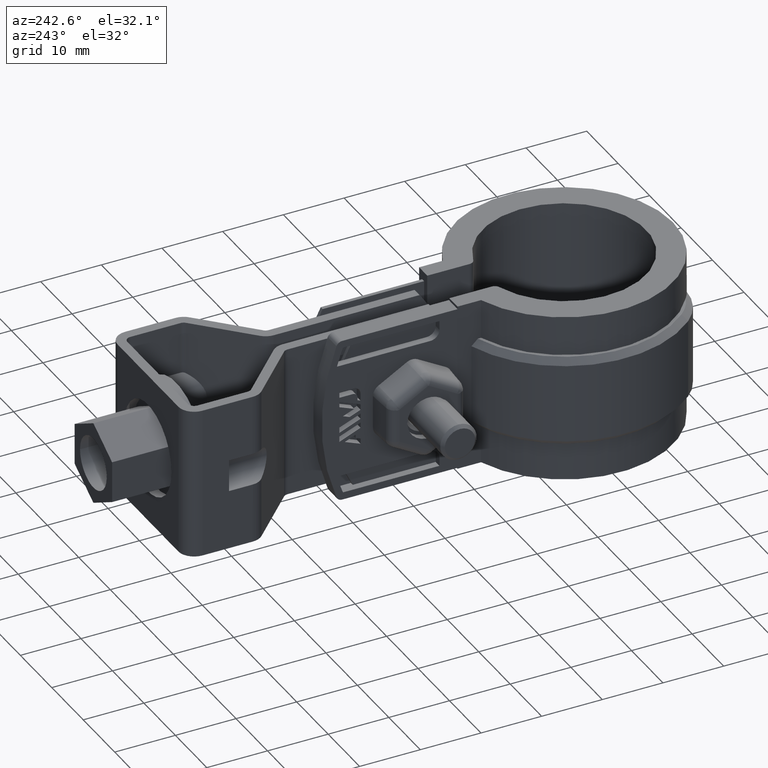
[diagram: clean part render]
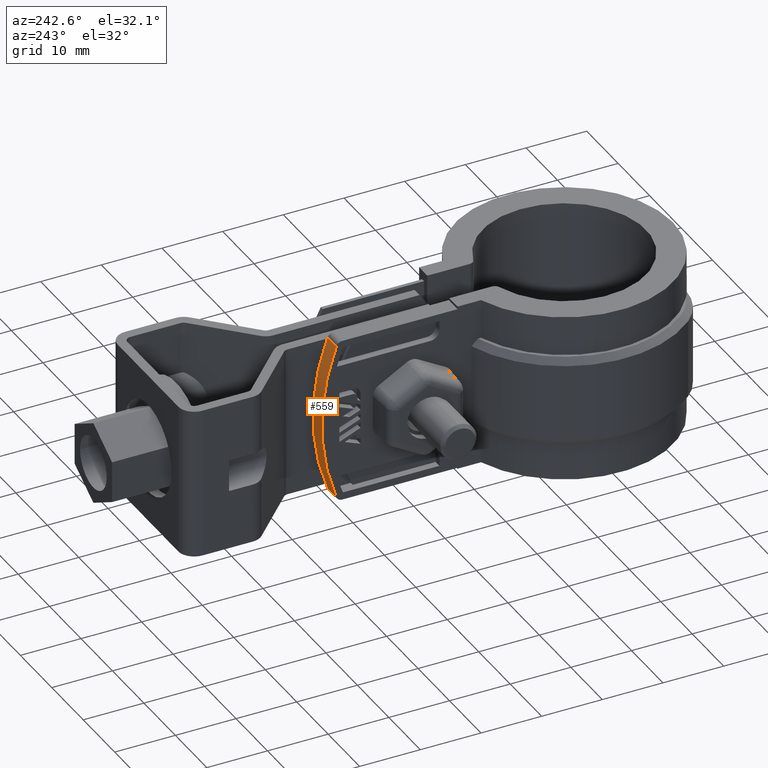
[diagram: same view with one face highlighted and labeled with its STEP entity id]
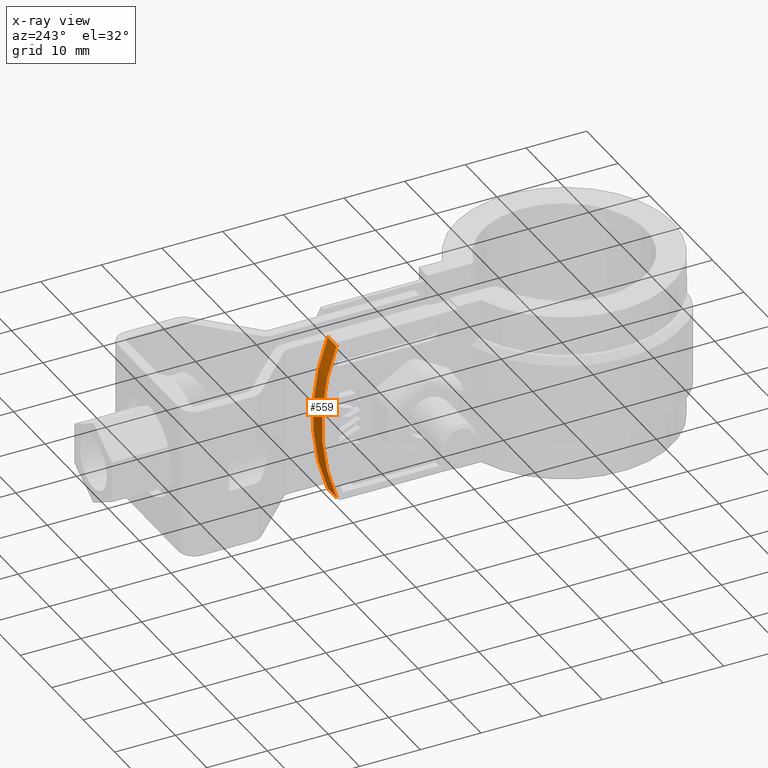
[diagram: x-ray of the same camera — body ghosted, the highlighted face saturated]
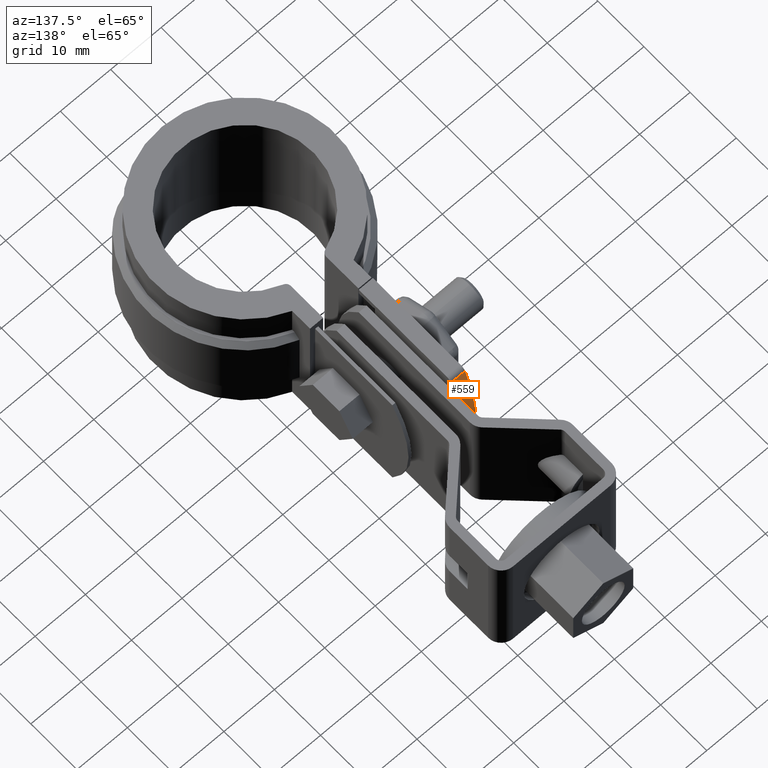
[diagram: same view with one face highlighted and labeled with its STEP entity id]
A machine part, auxiliary view. The second image highlights one B-rep face of the part: STEP entity #559.
The next image is the same camera in x-ray: the body ghosted, the highlighted face saturated — about 0% of this face is hidden behind the body in this view.
A second angle (auxiliary view) of the same face is appended — the face is thin or edge-on in the first view.
In plain terms, the highlighted cylindrical surface (partial cylindrical patch) has radius 36.4 mm, axis along (-1, -0, 0).
Its self-contained STEP definition (entity closure, byte-faithful):
#559 = ADVANCED_FACE( '', ( #1112 ), #1113, .T. );
#1112 = FACE_OUTER_BOUND( '', #2237, .T. );
#1113 = CYLINDRICAL_SURFACE( '', #2238, 36.4000000000000 );
#2237 = EDGE_LOOP( '', ( #4951, #4952, #4953, #4954 ) );
#2238 = AXIS2_PLACEMENT_3D( '', #4955, #4956, #4957 );
#4951 = ORIENTED_EDGE( '', *, *, #6616, .T. );
#4952 = ORIENTED_EDGE( '', *, *, #6617, .T. );
#4953 = ORIENTED_EDGE( '', *, *, #6618, .F. );
#4954 = ORIENTED_EDGE( '', *, *, #6619, .T. );
#4955 = CARTESIAN_POINT( '', ( -3.50000000000003, 6.82194656581947, -12.5000000000001 ) );
#4956 = DIRECTION( '', ( -1.00000000000000, -1.77553823037275E-016, 1.31611162141133E-020 ) );
#4957 = DIRECTION( '', ( -1.64492975916827E-016, 0.926467966726517, 0.376373626373626 ) );
#6616 = EDGE_CURVE( '', #7986, #7987, #7988, .T. );
#6617 = EDGE_CURVE( '', #7987, #7989, #7990, .T. );
#6618 = EDGE_CURVE( '', #7991, #7989, #7992, .T. );
#6619 = EDGE_CURVE( '', #7991, #7986, #7993, .T. );
#7986 = VERTEX_POINT( '', #11337 );
#7987 = VERTEX_POINT( '', #11338 );
#7988 = CIRCLE( '', #11339, 36.4000000000000 );
#7989 = VERTEX_POINT( '', #11340 );
#7990 = LINE( '', #11341, #11342 );
#7991 = VERTEX_POINT( '', #11343 );
#7992 = CIRCLE( '', #11344, 36.4000000000000 );
#7993 = LINE( '', #11345, #11346 );
#11337 = CARTESIAN_POINT( '', ( -3.50000000000003, 40.7988337686200, 0.558757062146803 ) );
#11338 = CARTESIAN_POINT( '', ( -3.50000000000003, 40.7988337686200, -25.5587570621470 ) );
#11339 = AXIS2_PLACEMENT_3D( '', #12835, #12836, #12837 );
#11340 = CARTESIAN_POINT( '', ( -6.30000000000003, 40.7988337686200, -25.5587570621470 ) );
#11341 = CARTESIAN_POINT( '', ( -3.50000000000004, 40.7988337686200, -25.5587570621470 ) );
#11342 = VECTOR( '', #12838, 1000.00000000000 );
#11343 = CARTESIAN_POINT( '', ( -6.30000000000003, 40.7988337686200, 0.558757062146803 ) );
#11344 = AXIS2_PLACEMENT_3D( '', #12839, #12840, #12841 );
#11345 = CARTESIAN_POINT( '', ( -3.50000000000004, 40.7988337686200, 0.558757062146807 ) );
#11346 = VECTOR( '', #12842, 1000.00000000000 );
#12835 = CARTESIAN_POINT( '', ( -3.50000000000003, 6.82194656581947, -12.5000000000001 ) );
#12836 = DIRECTION( '', ( -1.00000000000000, 6.07323687177816E-017, 1.31611162144384E-020 ) );
#12837 = DIRECTION( '', ( 1.31611162144249E-020, -2.22044604925031E-016, 1.00000000000000 ) );
#12838 = DIRECTION( '', ( -1.00000000000000, -1.77553823037274E-016, 1.31611162143767E-020 ) );
#12839 = CARTESIAN_POINT( '', ( -6.30000000000003, 6.82194656581947, -12.5000000000001 ) );
#12840 = DIRECTION( '', ( -1.00000000000000, 6.07323687177816E-017, 1.31611162144384E-020 ) );
#12841 = DIRECTION( '', ( 1.31611162144249E-020, -2.22044604925031E-016, 1.00000000000000 ) );
#12842 = DIRECTION( '', ( 1.00000000000000, 1.77553823037274E-016, -1.31611162143767E-020 ) );